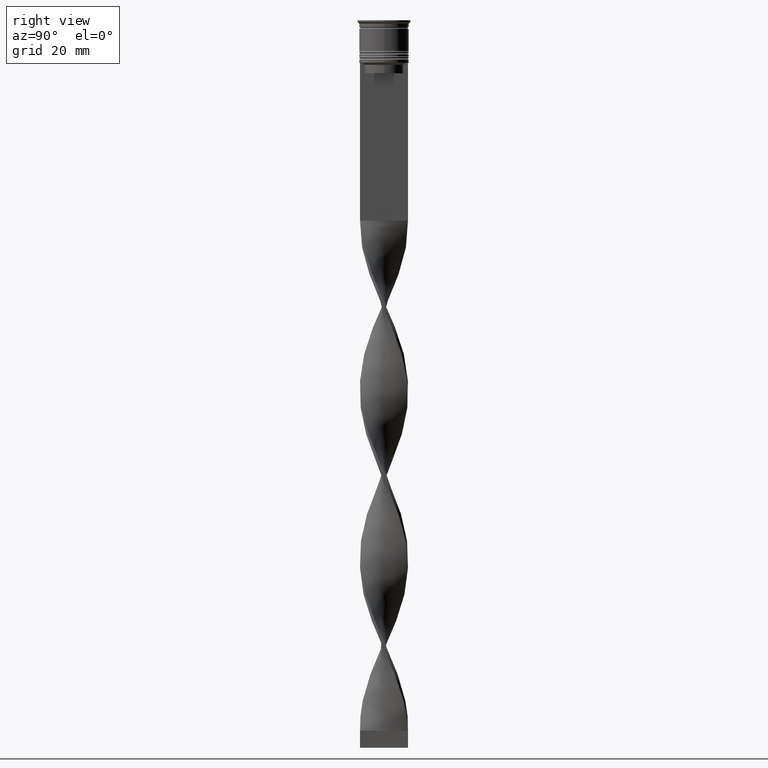
[diagram: clean part render]
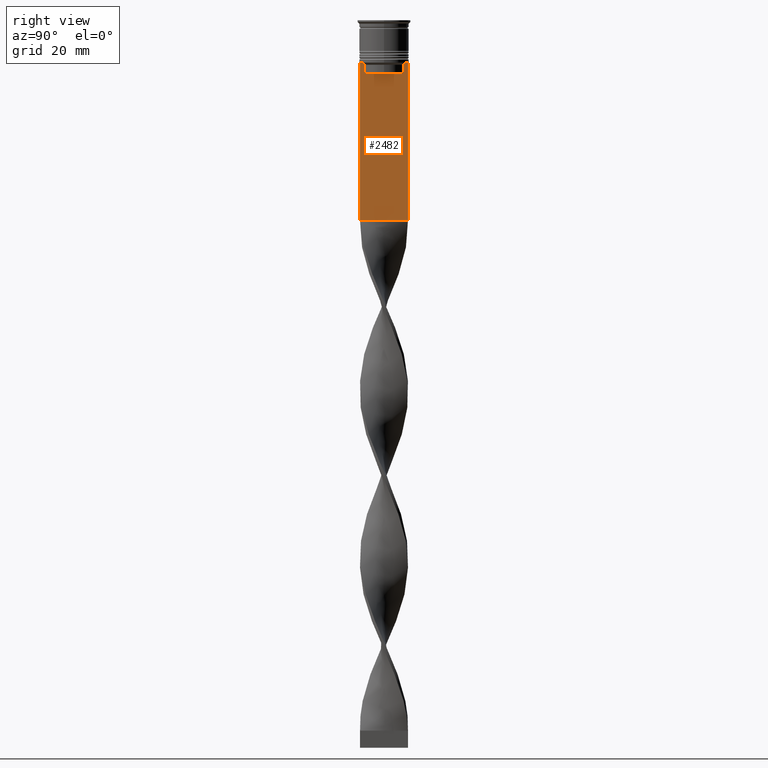
[diagram: same view with one face highlighted and labeled with its STEP entity id]
A machine part, right view. The second image highlights one B-rep face of the part: STEP entity #2482.
In plain terms, the highlighted planar face has unit normal (-1, 0, 0).
Its self-contained STEP definition (entity closure, byte-faithful):
#17 = LINE ( 'NONE', #1185, #614 ) ;
#54 = CARTESIAN_POINT ( 'NONE',  ( 0.5000000000000000000, -6.129641098791995368, -12.50000000000000000 ) ) ;
#87 = EDGE_LOOP ( 'NONE', ( #228, #1188, #276, #2239, #3703, #1034, #204, #1408, #1009, #1235 ) ) ;
#102 = DIRECTION ( 'NONE',  ( 0.000000000000000000, -1.000000000000000000, 0.000000000000000000 ) ) ;
#108 = VERTEX_POINT ( 'NONE', #2478 ) ;
#125 = CARTESIAN_POINT ( 'NONE',  ( 0.5000000000000000000, 5.627832620112292794, -13.00000000000000000 ) ) ;
#137 = EDGE_CURVE ( 'NONE', #488, #395, #3666, .T. ) ;
#204 = ORIENTED_EDGE ( 'NONE', *, *, #137, .T. ) ;
#228 = ORIENTED_EDGE ( 'NONE', *, *, #1255, .T. ) ;
#276 = ORIENTED_EDGE ( 'NONE', *, *, #1826, .T. ) ;
#322 = DIRECTION ( 'NONE',  ( -0.000000000000000000, -0.000000000000000000, 1.000000000000000000 ) ) ;
#361 = DIRECTION ( 'NONE',  ( 0.000000000000000000, 0.000000000000000000, -1.000000000000000000 ) ) ;
#395 = VERTEX_POINT ( 'NONE', #2999 ) ;
#412 = PLANE ( 'NONE',  #3505 ) ;
#488 = VERTEX_POINT ( 'NONE', #638 ) ;
#552 = VECTOR ( 'NONE', #361, 1000.000000000000000 ) ;
#614 = VECTOR ( 'NONE', #322, 1000.000000000000000 ) ;
#628 = CARTESIAN_POINT ( 'NONE',  ( 0.5000000000000000000, 6.129641098791995368, -12.50000000000000000 ) ) ;
#638 = CARTESIAN_POINT ( 'NONE',  ( 0.5000000000000000000, -6.129641098791995368, -12.50000000000000000 ) ) ;
#718 = CARTESIAN_POINT ( 'NONE',  ( 0.5000000000000000000, -6.999999999999997335, 1.535668847618198329 ) ) ;
#783 = LINE ( 'NONE', #860, #2648 ) ;
#785 = LINE ( 'NONE', #1909, #1737 ) ;
#860 = CARTESIAN_POINT ( 'NONE',  ( 0.5000000000000000000, -6.999999999999997335, -58.50000000000000000 ) ) ;
#967 = B_SPLINE_CURVE_WITH_KNOTS ( 'NONE', 3,
 ( #2937, #2690, #2656, #54 ),
 .UNSPECIFIED., .F., .F.,
 ( 4, 4 ),
 ( 0.02651134470867368836, 0.02721991123504332449 ),
 .UNSPECIFIED. ) ;
#989 = VERTEX_POINT ( 'NONE', #1761 ) ;
#1009 = ORIENTED_EDGE ( 'NONE', *, *, #3250, .T. ) ;
#1034 = ORIENTED_EDGE ( 'NONE', *, *, #2667, .T. ) ;
#1115 = VERTEX_POINT ( 'NONE', #1286 ) ;
#1185 = CARTESIAN_POINT ( 'NONE',  ( 0.5000000000000000000, -5.627832620112292794, 0.000000000000000000 ) ) ;
#1188 = ORIENTED_EDGE ( 'NONE', *, *, #2412, .T. ) ;
#1192 = LINE ( 'NONE', #2956, #552 ) ;
#1227 = VECTOR ( 'NONE', #102, 1000.000000000000000 ) ;
#1235 = ORIENTED_EDGE ( 'NONE', *, *, #2712, .F. ) ;
#1255 = EDGE_CURVE ( 'NONE', #1939, #2740, #2696, .T. ) ;
#1286 = CARTESIAN_POINT ( 'NONE',  ( 0.5000000000000000000, 5.627832620112292794, -13.00000000000000000 ) ) ;
#1397 = VERTEX_POINT ( 'NONE', #3447 ) ;
#1408 = ORIENTED_EDGE ( 'NONE', *, *, #1660, .T. ) ;
#1435 = CARTESIAN_POINT ( 'NONE',  ( 0.5000000000000000000, -6.999999999999997335, -12.50000000000000000 ) ) ;
#1463 = CARTESIAN_POINT ( 'NONE',  ( 0.5000000000000000000, -6.999999999999997335, -58.50000000000000000 ) ) ;
#1531 = VERTEX_POINT ( 'NONE', #1463 ) ;
#1566 = B_SPLINE_CURVE_WITH_KNOTS ( 'NONE', 3,
 ( #3705, #2229, #3083, #125 ),
 .UNSPECIFIED., .F., .F.,
 ( 4, 4 ),
 ( 0.01045365750109871796, 0.01116204421161398619 ),
 .UNSPECIFIED. ) ;
#1660 = EDGE_CURVE ( 'NONE', #395, #1531, #2008, .T. ) ;
#1737 = VECTOR ( 'NONE', #3129, 1000.000000000000000 ) ;
#1761 = CARTESIAN_POINT ( 'NONE',  ( 0.5000000000000000000, -5.627832620112292794, -13.00000000000000000 ) ) ;
#1826 = EDGE_CURVE ( 'NONE', #1115, #1397, #2673, .T. ) ;
#1866 = CARTESIAN_POINT ( 'NONE',  ( 0.5000000000000000000, 7.000000000000002665, -58.50000000000000000 ) ) ;
#1900 = DIRECTION ( 'NONE',  ( 0.000000000000000000, 0.000000000000000000, 1.000000000000000000 ) ) ;
#1909 = CARTESIAN_POINT ( 'NONE',  ( 0.5000000000000000000, 5.649999999999998579, -15.50000000000000000 ) ) ;
#1934 = VECTOR ( 'NONE', #3492, 1000.000000000000000 ) ;
#1939 = VERTEX_POINT ( 'NONE', #3072 ) ;
#2008 = LINE ( 'NONE', #2050, #3756 ) ;
#2033 = EDGE_CURVE ( 'NONE', #1397, #108, #785, .T. ) ;
#2050 = CARTESIAN_POINT ( 'NONE',  ( 0.5000000000000000000, -6.999999999999997335, 1.535668847618198329 ) ) ;
#2229 = CARTESIAN_POINT ( 'NONE',  ( 0.5000000000000000000, 5.962396146966409738, -12.66669130573587054 ) ) ;
#2239 = ORIENTED_EDGE ( 'NONE', *, *, #2033, .T. ) ;
#2412 = EDGE_CURVE ( 'NONE', #2740, #1115, #1566, .T. ) ;
#2464 = CARTESIAN_POINT ( 'NONE',  ( 0.5000000000000000000, 5.627832620112292794, 0.000000000000000000 ) ) ;
#2478 = CARTESIAN_POINT ( 'NONE',  ( 0.5000000000000000000, -5.627832620112292794, -15.50000000000000000 ) ) ;
#2482 = ADVANCED_FACE ( 'NONE', ( #3664 ), #412, .F. ) ;
#2648 = VECTOR ( 'NONE', #3805, 1000.000000000000000 ) ;
#2656 = CARTESIAN_POINT ( 'NONE',  ( 0.5000000000000000000, -5.962396079681185235, -12.66669137279835589 ) ) ;
#2667 = EDGE_CURVE ( 'NONE', #989, #488, #967, .T. ) ;
#2673 = LINE ( 'NONE', #2464, #3513 ) ;
#2690 = CARTESIAN_POINT ( 'NONE',  ( 0.5000000000000000000, -5.795128760752289665, -12.83336023406855197 ) ) ;
#2696 = LINE ( 'NONE', #2735, #1227 ) ;
#2712 = EDGE_CURVE ( 'NONE', #1939, #3565, #1192, .T. ) ;
#2735 = CARTESIAN_POINT ( 'NONE',  ( 0.5000000000000000000, -6.999999999999997335, -12.50000000000000000 ) ) ;
#2740 = VERTEX_POINT ( 'NONE', #628 ) ;
#2937 = CARTESIAN_POINT ( 'NONE',  ( 0.5000000000000000000, -5.627832620112292794, -13.00000000000000000 ) ) ;
#2956 = CARTESIAN_POINT ( 'NONE',  ( 0.5000000000000000000, 7.000000000000002665, 1.535668847618198329 ) ) ;
#2999 = CARTESIAN_POINT ( 'NONE',  ( 0.5000000000000000000, -6.999999999999997335, -12.50000000000000000 ) ) ;
#3072 = CARTESIAN_POINT ( 'NONE',  ( 0.5000000000000000000, 7.000000000000002665, -12.50000000000000000 ) ) ;
#3083 = CARTESIAN_POINT ( 'NONE',  ( 0.5000000000000000000, 5.795128834036803234, -12.83336016107156574 ) ) ;
#3129 = DIRECTION ( 'NONE',  ( 0.000000000000000000, -1.000000000000000000, 0.000000000000000000 ) ) ;
#3216 = DIRECTION ( 'NONE',  ( 0.000000000000000000, 0.000000000000000000, -1.000000000000000000 ) ) ;
#3250 = EDGE_CURVE ( 'NONE', #1531, #3565, #783, .T. ) ;
#3289 = DIRECTION ( 'NONE',  ( 0.000000000000000000, 0.000000000000000000, -1.000000000000000000 ) ) ;
#3417 = DIRECTION ( 'NONE',  ( -1.000000000000000000, 0.000000000000000000, 0.000000000000000000 ) ) ;
#3427 = EDGE_CURVE ( 'NONE', #108, #989, #17, .T. ) ;
#3447 = CARTESIAN_POINT ( 'NONE',  ( 0.5000000000000000000, 5.627832620112292794, -15.50000000000000000 ) ) ;
#3492 = DIRECTION ( 'NONE',  ( 0.000000000000000000, -1.000000000000000000, 0.000000000000000000 ) ) ;
#3505 = AXIS2_PLACEMENT_3D ( 'NONE', #718, #3417, #1900 ) ;
#3513 = VECTOR ( 'NONE', #3289, 1000.000000000000000 ) ;
#3565 = VERTEX_POINT ( 'NONE', #1866 ) ;
#3664 = FACE_OUTER_BOUND ( 'NONE', #87, .T. ) ;
#3666 = LINE ( 'NONE', #1435, #1934 ) ;
#3703 = ORIENTED_EDGE ( 'NONE', *, *, #3427, .T. ) ;
#3705 = CARTESIAN_POINT ( 'NONE',  ( 0.5000000000000000000, 6.129641098791995368, -12.50000000000000000 ) ) ;
#3756 = VECTOR ( 'NONE', #3216, 1000.000000000000000 ) ;
#3805 = DIRECTION ( 'NONE',  ( 0.000000000000000000, 1.000000000000000000, 0.000000000000000000 ) ) ;